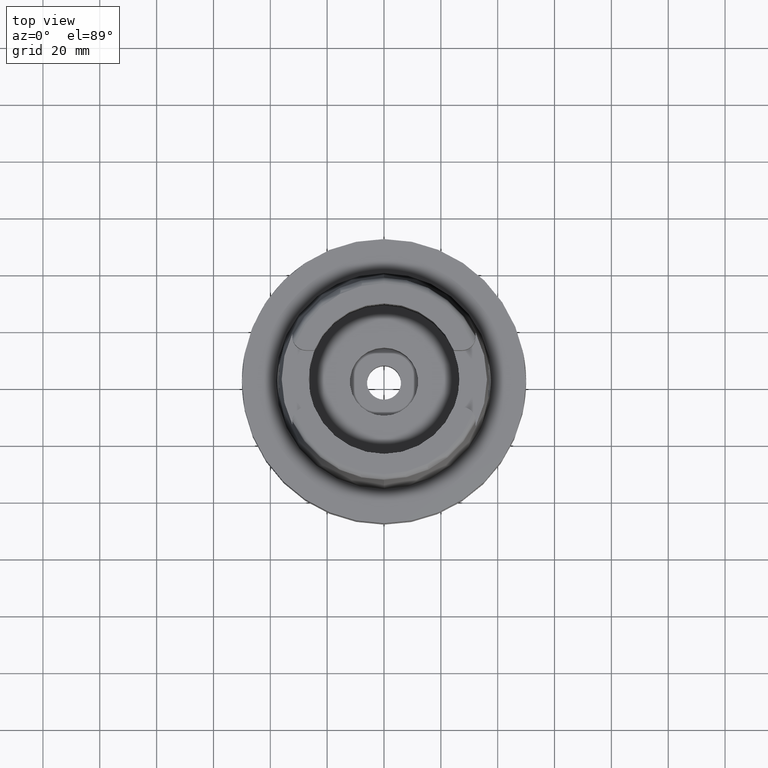
[diagram: clean part render]
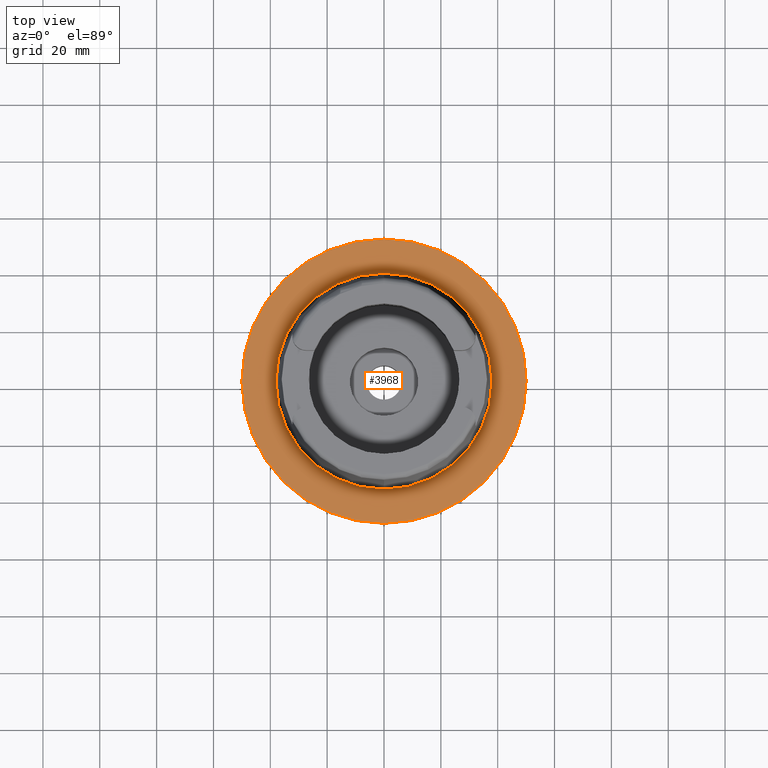
[diagram: same view with one face highlighted and labeled with its STEP entity id]
A machine part, top view. The second image highlights one B-rep face of the part: STEP entity #3968.
In plain terms, the highlighted planar face has unit normal (0, 0, 1).
Its self-contained STEP definition (entity closure, byte-faithful):
#1957=CARTESIAN_POINT('',(0.E0,0.E0,0.E0));
#1958=DIRECTION('',(0.E0,0.E0,-1.E0));
#1959=DIRECTION('',(0.E0,-1.E0,0.E0));
#1960=AXIS2_PLACEMENT_3D('',#1957,#1958,#1959);
#1965=CARTESIAN_POINT('',(0.E0,0.E0,0.E0));
#1966=DIRECTION('',(0.E0,0.E0,-1.E0));
#1967=DIRECTION('',(0.E0,1.E0,0.E0));
#1968=AXIS2_PLACEMENT_3D('',#1965,#1966,#1967);
#1973=CARTESIAN_POINT('',(0.E0,0.E0,1.023181539495E-12));
#1974=DIRECTION('',(0.E0,0.E0,1.E0));
#1975=DIRECTION('',(0.E0,-1.E0,0.E0));
#1976=AXIS2_PLACEMENT_3D('',#1973,#1974,#1975);
#1981=CARTESIAN_POINT('',(0.E0,0.E0,1.023181539495E-12));
#1982=DIRECTION('',(0.E0,0.E0,1.E0));
#1983=DIRECTION('',(0.E0,1.E0,0.E0));
#1984=AXIS2_PLACEMENT_3D('',#1981,#1982,#1983);
#2281=CARTESIAN_POINT('',(0.E0,-3.800001658252E1,6.821210263297E-13));
#2282=VERTEX_POINT('',#2281);
#2283=CARTESIAN_POINT('',(0.E0,3.800001658252E1,1.023181539495E-12));
#2284=VERTEX_POINT('',#2283);
#2522=CARTESIAN_POINT('',(0.E0,5.E1,0.E0));
#2523=VERTEX_POINT('',#2522);
#2524=CARTESIAN_POINT('',(0.E0,-5.E1,0.E0));
#2525=VERTEX_POINT('',#2524);
#3955=CARTESIAN_POINT('',(0.E0,0.E0,0.E0));
#3956=DIRECTION('',(0.E0,0.E0,1.E0));
#3957=DIRECTION('',(0.E0,1.E0,0.E0));
#3958=AXIS2_PLACEMENT_3D('',#3955,#3956,#3957);
#3959=PLANE('',#3958);
#3960=ORIENTED_EDGE('',*,*,#3720,.T.);
#3961=ORIENTED_EDGE('',*,*,#3829,.T.);
#3962=EDGE_LOOP('',(#3960,#3961));
#3963=FACE_OUTER_BOUND('',#3962,.F.);
#3964=ORIENTED_EDGE('',*,*,#2760,.T.);
#3965=ORIENTED_EDGE('',*,*,#2731,.T.);
#3966=EDGE_LOOP('',(#3964,#3965));
#3967=FACE_BOUND('',#3966,.F.);
#1961=CIRCLE('',#1960,5.E1);
#1969=CIRCLE('',#1968,5.E1);
#1977=CIRCLE('',#1976,3.800001658252E1);
#1985=CIRCLE('',#1984,3.800001658252E1);
#2731=EDGE_CURVE('',#2284,#2282,#1985,.T.);
#2760=EDGE_CURVE('',#2282,#2284,#1977,.T.);
#3720=EDGE_CURVE('',#2525,#2523,#1961,.T.);
#3829=EDGE_CURVE('',#2523,#2525,#1969,.T.);
#3968=ADVANCED_FACE('',(#3963,#3967),#3959,.T.);